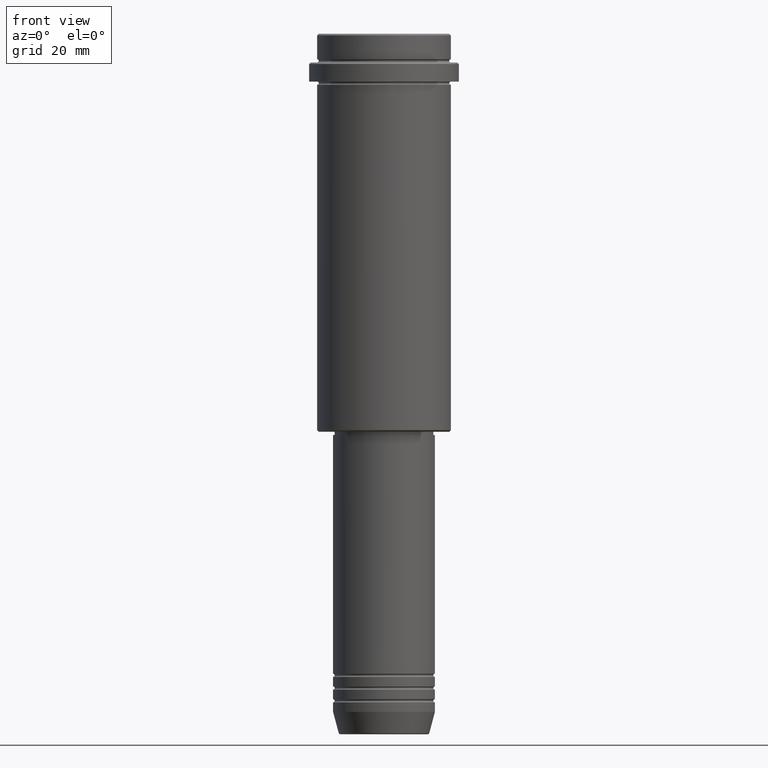
[diagram: clean part render]
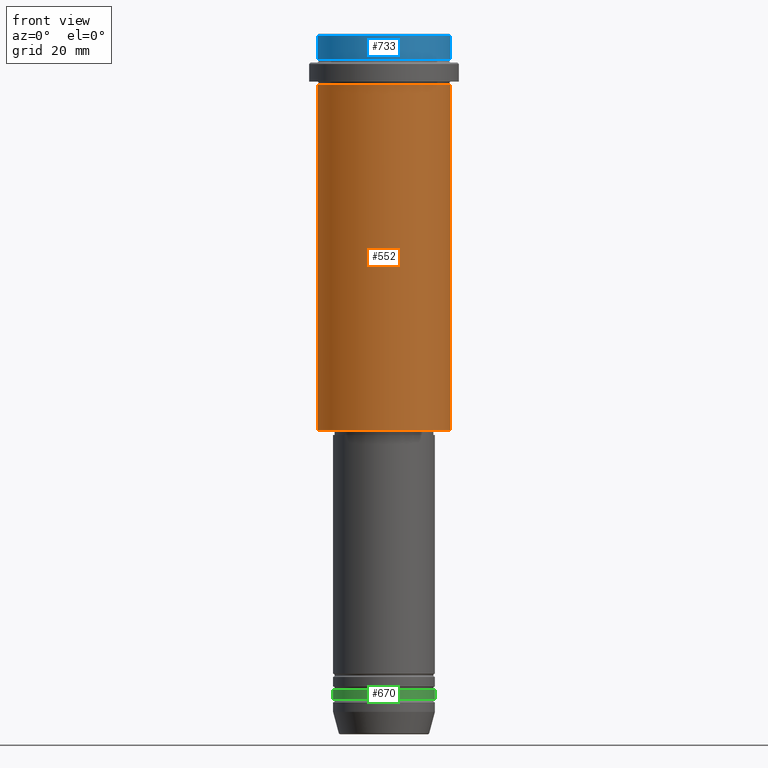
[diagram: same view with three faces highlighted in distinct colors, each labeled with its STEP entity id]
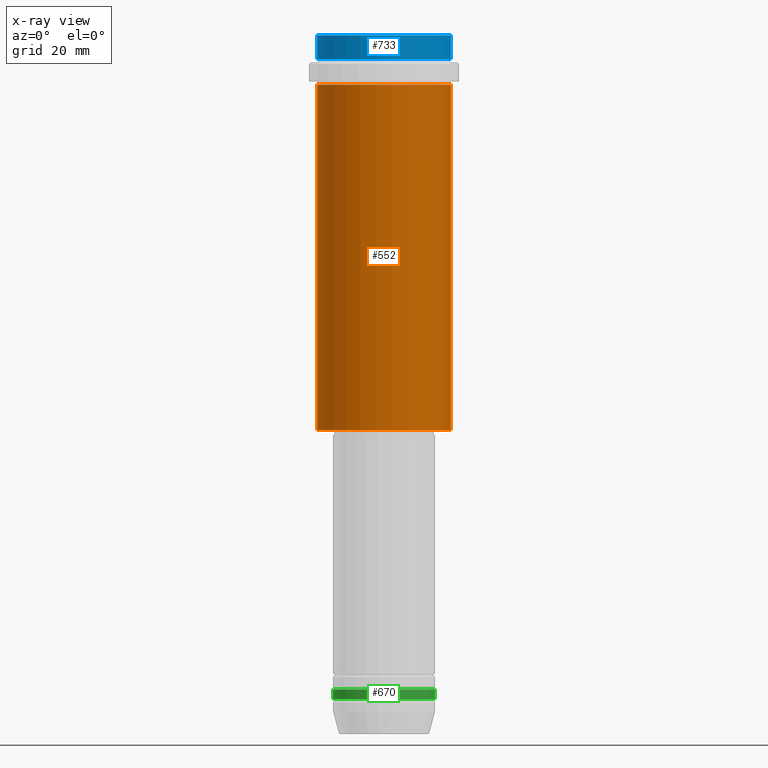
[diagram: x-ray of the same camera — body ghosted, the three highlighted faces saturated]
A machine part, front view with three faces highlighted in distinct colors.
The next image is the same camera in x-ray (body ghosted, the three faces saturated) — at least one of them is partly hidden behind the body in this view.
Their STEP definitions:

[orange] entity #552 — the highlighted cylindrical surface (partial cylindrical patch) has radius 21 mm, axis along (-0, -0, 1).
#16 = CARTESIAN_POINT ( 'NONE',  ( 0.000000000000000000, 0.000000000000000000, 0.000000000000000000 ) ) ;
#38 = EDGE_CURVE ( 'NONE', #1193, #1256, #209, .T. ) ;
#42 = FACE_OUTER_BOUND ( 'NONE', #753, .T. ) ;
#48 = DIRECTION ( 'NONE',  ( -0.000000000000000000, -0.000000000000000000, 1.000000000000000000 ) ) ;
#56 = VERTEX_POINT ( 'NONE', #669 ) ;
#66 = ORIENTED_EDGE ( 'NONE', *, *, #665, .F. ) ;
#87 = CARTESIAN_POINT ( 'NONE',  ( -20.99999999999999645, 2.571758278209441267E-15, -124.4999999999999432 ) ) ;
#177 = VERTEX_POINT ( 'NONE', #258 ) ;
#197 = DIRECTION ( 'NONE',  ( -0.000000000000000000, -0.000000000000000000, 1.000000000000000000 ) ) ;
#209 = CIRCLE ( 'NONE', #1163, 20.99999999999999645 ) ;
#228 = CARTESIAN_POINT ( 'NONE',  ( 0.000000000000000000, 0.000000000000000000, -124.4999999999999432 ) ) ;
#258 = CARTESIAN_POINT ( 'NONE',  ( -20.99999999999999645, 2.571758278209441267E-15, -16.00000000000000355 ) ) ;
#274 = CARTESIAN_POINT ( 'NONE',  ( 20.99999999999999645, 0.000000000000000000, -124.4999999999999432 ) ) ;
#347 = CARTESIAN_POINT ( 'NONE',  ( 20.99999999999999645, 0.000000000000000000, 0.000000000000000000 ) ) ;
#399 = VECTOR ( 'NONE', #1353, 1000.000000000000000 ) ;
#552 = ADVANCED_FACE ( 'NONE', ( #42 ), #593, .T. ) ;
#561 = AXIS2_PLACEMENT_3D ( 'NONE', #1171, #839, #1359 ) ;
#575 = DIRECTION ( 'NONE',  ( 1.000000000000000000, 0.000000000000000000, 0.000000000000000000 ) ) ;
#593 = CYLINDRICAL_SURFACE ( 'NONE', #1143, 20.99999999999999645 ) ;
#663 = ORIENTED_EDGE ( 'NONE', *, *, #38, .T. ) ;
#665 = EDGE_CURVE ( 'NONE', #1193, #177, #1270, .T. ) ;
#669 = CARTESIAN_POINT ( 'NONE',  ( 20.99999999999999645, 0.000000000000000000, -16.00000000000000355 ) ) ;
#738 = ORIENTED_EDGE ( 'NONE', *, *, #995, .F. ) ;
#753 = EDGE_LOOP ( 'NONE', ( #66, #663, #1042, #738 ) ) ;
#839 = DIRECTION ( 'NONE',  ( -0.000000000000000000, -0.000000000000000000, 1.000000000000000000 ) ) ;
#922 = LINE ( 'NONE', #347, #399 ) ;
#995 = EDGE_CURVE ( 'NONE', #177, #56, #1001, .T. ) ;
#1001 = CIRCLE ( 'NONE', #561, 20.99999999999999645 ) ;
#1042 = ORIENTED_EDGE ( 'NONE', *, *, #1355, .T. ) ;
#1082 = CARTESIAN_POINT ( 'NONE',  ( -20.99999999999999645, 2.571758278209441267E-15, 0.000000000000000000 ) ) ;
#1143 = AXIS2_PLACEMENT_3D ( 'NONE', #16, #48, #575 ) ;
#1163 = AXIS2_PLACEMENT_3D ( 'NONE', #228, #1218, #1194 ) ;
#1171 = CARTESIAN_POINT ( 'NONE',  ( 0.000000000000000000, 0.000000000000000000, -16.00000000000000355 ) ) ;
#1193 = VERTEX_POINT ( 'NONE', #87 ) ;
#1194 = DIRECTION ( 'NONE',  ( -1.000000000000000000, 0.000000000000000000, 0.000000000000000000 ) ) ;
#1218 = DIRECTION ( 'NONE',  ( -0.000000000000000000, -0.000000000000000000, 1.000000000000000000 ) ) ;
#1256 = VERTEX_POINT ( 'NONE', #274 ) ;
#1270 = LINE ( 'NONE', #1082, #1390 ) ;
#1353 = DIRECTION ( 'NONE',  ( -0.000000000000000000, -0.000000000000000000, 1.000000000000000000 ) ) ;
#1355 = EDGE_CURVE ( 'NONE', #1256, #56, #922, .T. ) ;
#1359 = DIRECTION ( 'NONE',  ( 1.000000000000000000, 0.000000000000000000, 0.000000000000000000 ) ) ;
#1390 = VECTOR ( 'NONE', #197, 1000.000000000000000 ) ;

[blue] entity #733 — the highlighted cylindrical surface (partial cylindrical patch) has radius 21 mm, axis along (-0, -0, 1).
#13 = LINE ( 'NONE', #902, #62 ) ;
#23 = DIRECTION ( 'NONE',  ( 0.000000000000000000, 0.000000000000000000, -1.000000000000000000 ) ) ;
#62 = VECTOR ( 'NONE', #796, 1000.000000000000000 ) ;
#99 = CIRCLE ( 'NONE', #790, 20.99999999999999645 ) ;
#106 = VERTEX_POINT ( 'NONE', #933 ) ;
#160 = DIRECTION ( 'NONE',  ( -0.000000000000000000, -0.000000000000000000, 1.000000000000000000 ) ) ;
#232 = VERTEX_POINT ( 'NONE', #1297 ) ;
#257 = DIRECTION ( 'NONE',  ( -0.000000000000000000, -0.000000000000000000, 1.000000000000000000 ) ) ;
#259 = DIRECTION ( 'NONE',  ( 1.000000000000000000, 0.000000000000000000, 0.000000000000000000 ) ) ;
#275 = DIRECTION ( 'NONE',  ( -0.000000000000000000, -0.000000000000000000, 1.000000000000000000 ) ) ;
#428 = EDGE_CURVE ( 'NONE', #106, #232, #1261, .T. ) ;
#485 = EDGE_CURVE ( 'NONE', #106, #635, #631, .T. ) ;
#534 = AXIS2_PLACEMENT_3D ( 'NONE', #807, #257, #700 ) ;
#542 = CARTESIAN_POINT ( 'NONE',  ( 0.000000000000000000, 0.000000000000000000, -0.5000000000000073275 ) ) ;
#585 = VERTEX_POINT ( 'NONE', #812 ) ;
#631 = CIRCLE ( 'NONE', #534, 20.99999999999999645 ) ;
#635 = VERTEX_POINT ( 'NONE', #1328 ) ;
#700 = DIRECTION ( 'NONE',  ( 1.000000000000000000, 0.000000000000000000, 0.000000000000000000 ) ) ;
#720 = CARTESIAN_POINT ( 'NONE',  ( 0.000000000000000000, 0.000000000000000000, 0.000000000000000000 ) ) ;
#733 = ADVANCED_FACE ( 'NONE', ( #1374 ), #1246, .T. ) ;
#784 = VECTOR ( 'NONE', #275, 1000.000000000000000 ) ;
#790 = AXIS2_PLACEMENT_3D ( 'NONE', #542, #23, #917 ) ;
#796 = DIRECTION ( 'NONE',  ( -0.000000000000000000, -0.000000000000000000, 1.000000000000000000 ) ) ;
#807 = CARTESIAN_POINT ( 'NONE',  ( 0.000000000000000000, 0.000000000000000000, -7.999999999999998224 ) ) ;
#812 = CARTESIAN_POINT ( 'NONE',  ( 20.99999999999999645, 0.000000000000000000, -0.5000000000000073275 ) ) ;
#819 = ORIENTED_EDGE ( 'NONE', *, *, #886, .T. ) ;
#848 = EDGE_LOOP ( 'NONE', ( #1136, #1207, #819, #869 ) ) ;
#869 = ORIENTED_EDGE ( 'NONE', *, *, #874, .T. ) ;
#874 = EDGE_CURVE ( 'NONE', #585, #232, #99, .T. ) ;
#886 = EDGE_CURVE ( 'NONE', #635, #585, #13, .T. ) ;
#902 = CARTESIAN_POINT ( 'NONE',  ( 20.99999999999999645, 0.000000000000000000, 0.000000000000000000 ) ) ;
#917 = DIRECTION ( 'NONE',  ( 1.000000000000000000, 0.000000000000000000, 0.000000000000000000 ) ) ;
#933 = CARTESIAN_POINT ( 'NONE',  ( -20.99999999999999645, 2.571758278209441267E-15, -7.999999999999998224 ) ) ;
#1073 = AXIS2_PLACEMENT_3D ( 'NONE', #720, #160, #259 ) ;
#1136 = ORIENTED_EDGE ( 'NONE', *, *, #428, .F. ) ;
#1207 = ORIENTED_EDGE ( 'NONE', *, *, #485, .T. ) ;
#1246 = CYLINDRICAL_SURFACE ( 'NONE', #1073, 20.99999999999999645 ) ;
#1261 = LINE ( 'NONE', #1340, #784 ) ;
#1297 = CARTESIAN_POINT ( 'NONE',  ( -20.99999999999999645, 2.571758278209441267E-15, -0.5000000000000073275 ) ) ;
#1328 = CARTESIAN_POINT ( 'NONE',  ( 20.99999999999999645, 0.000000000000000000, -7.999999999999998224 ) ) ;
#1340 = CARTESIAN_POINT ( 'NONE',  ( -20.99999999999999645, 2.571758278209441267E-15, 0.000000000000000000 ) ) ;
#1374 = FACE_OUTER_BOUND ( 'NONE', #848, .T. ) ;

[green] entity #670 — the highlighted cylindrical surface (partial cylindrical patch) has radius 16 mm, axis along (-0, -0, 1).
#36 = DIRECTION ( 'NONE',  ( -0.000000000000000000, -0.000000000000000000, 1.000000000000000000 ) ) ;
#154 = EDGE_CURVE ( 'NONE', #1012, #446, #1021, .T. ) ;
#184 = ORIENTED_EDGE ( 'NONE', *, *, #1070, .T. ) ;
#191 = AXIS2_PLACEMENT_3D ( 'NONE', #751, #1190, #531 ) ;
#255 = VERTEX_POINT ( 'NONE', #422 ) ;
#284 = EDGE_CURVE ( 'NONE', #1012, #715, #654, .T. ) ;
#304 = AXIS2_PLACEMENT_3D ( 'NONE', #529, #559, #445 ) ;
#355 = CARTESIAN_POINT ( 'NONE',  ( -16.00000000000000000, 1.959434878635765131E-15, -205.9999999999999147 ) ) ;
#422 = CARTESIAN_POINT ( 'NONE',  ( 16.00000000000000000, 0.000000000000000000, -205.9999999999999147 ) ) ;
#445 = DIRECTION ( 'NONE',  ( 1.000000000000000000, 0.000000000000000000, 0.000000000000000000 ) ) ;
#446 = VERTEX_POINT ( 'NONE', #355 ) ;
#448 = EDGE_LOOP ( 'NONE', ( #1003, #1066, #184, #851 ) ) ;
#466 = DIRECTION ( 'NONE',  ( 1.000000000000000000, 0.000000000000000000, 0.000000000000000000 ) ) ;
#518 = AXIS2_PLACEMENT_3D ( 'NONE', #1125, #696, #466 ) ;
#529 = CARTESIAN_POINT ( 'NONE',  ( 0.000000000000000000, 0.000000000000000000, 0.000000000000000000 ) ) ;
#531 = DIRECTION ( 'NONE',  ( 1.000000000000000000, 0.000000000000000000, 0.000000000000000000 ) ) ;
#559 = DIRECTION ( 'NONE',  ( -0.000000000000000000, -0.000000000000000000, 1.000000000000000000 ) ) ;
#630 = VECTOR ( 'NONE', #36, 1000.000000000000000 ) ;
#654 = CIRCLE ( 'NONE', #191, 16.00000000000000000 ) ;
#670 = ADVANCED_FACE ( 'NONE', ( #1076 ), #967, .T. ) ;
#677 = CIRCLE ( 'NONE', #518, 16.00000000000000000 ) ;
#696 = DIRECTION ( 'NONE',  ( -0.000000000000000000, -0.000000000000000000, 1.000000000000000000 ) ) ;
#715 = VERTEX_POINT ( 'NONE', #828 ) ;
#719 = LINE ( 'NONE', #1048, #1185 ) ;
#751 = CARTESIAN_POINT ( 'NONE',  ( 0.000000000000000000, 0.000000000000000000, -208.9999999999999147 ) ) ;
#798 = CARTESIAN_POINT ( 'NONE',  ( -16.00000000000000000, 1.959434878635765131E-15, 0.000000000000000000 ) ) ;
#828 = CARTESIAN_POINT ( 'NONE',  ( 16.00000000000000000, 0.000000000000000000, -208.9999999999999147 ) ) ;
#834 = EDGE_CURVE ( 'NONE', #446, #255, #677, .T. ) ;
#851 = ORIENTED_EDGE ( 'NONE', *, *, #834, .F. ) ;
#967 = CYLINDRICAL_SURFACE ( 'NONE', #304, 16.00000000000000000 ) ;
#1003 = ORIENTED_EDGE ( 'NONE', *, *, #154, .F. ) ;
#1012 = VERTEX_POINT ( 'NONE', #1033 ) ;
#1021 = LINE ( 'NONE', #798, #630 ) ;
#1033 = CARTESIAN_POINT ( 'NONE',  ( -16.00000000000000000, 1.959434878635765131E-15, -208.9999999999999147 ) ) ;
#1048 = CARTESIAN_POINT ( 'NONE',  ( 16.00000000000000000, 0.000000000000000000, 0.000000000000000000 ) ) ;
#1066 = ORIENTED_EDGE ( 'NONE', *, *, #284, .T. ) ;
#1070 = EDGE_CURVE ( 'NONE', #715, #255, #719, .T. ) ;
#1076 = FACE_OUTER_BOUND ( 'NONE', #448, .T. ) ;
#1125 = CARTESIAN_POINT ( 'NONE',  ( 0.000000000000000000, 0.000000000000000000, -205.9999999999999147 ) ) ;
#1129 = DIRECTION ( 'NONE',  ( -0.000000000000000000, -0.000000000000000000, 1.000000000000000000 ) ) ;
#1185 = VECTOR ( 'NONE', #1129, 1000.000000000000000 ) ;
#1190 = DIRECTION ( 'NONE',  ( -0.000000000000000000, -0.000000000000000000, 1.000000000000000000 ) ) ;